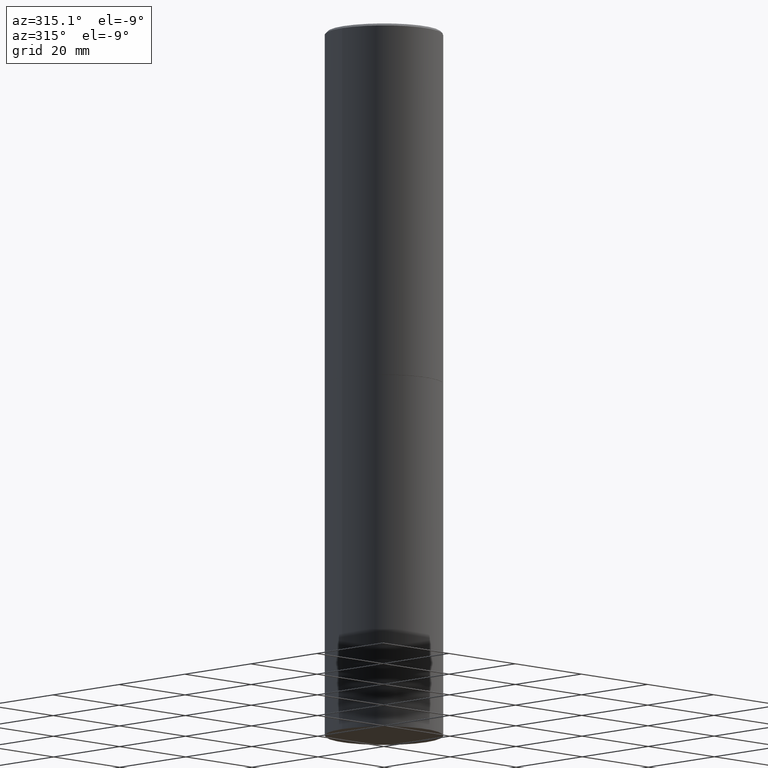
[diagram: clean part render]
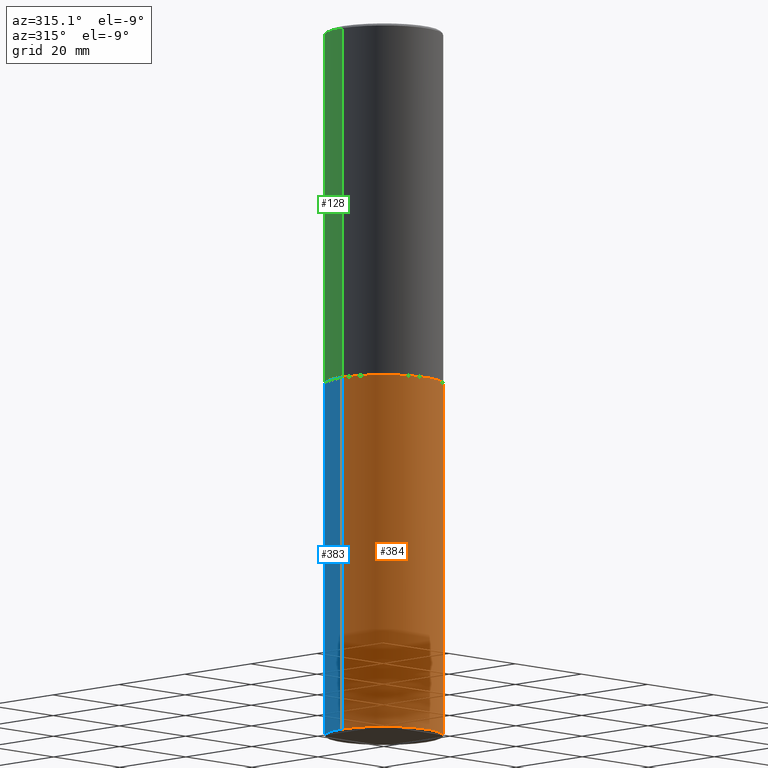
[diagram: same view with three faces highlighted in distinct colors, each labeled with its STEP entity id]
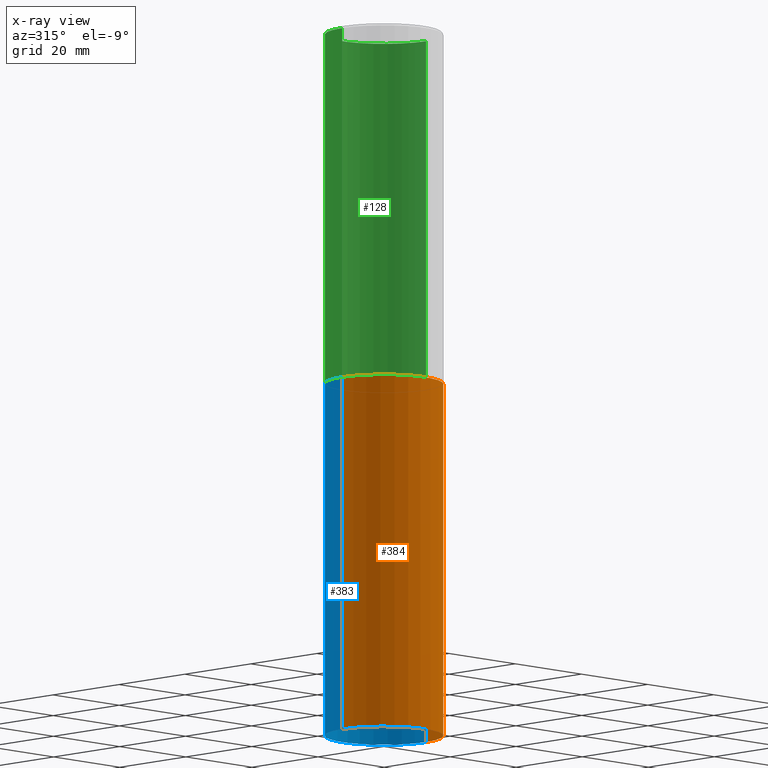
[diagram: x-ray of the same camera — body ghosted, the three highlighted faces saturated]
A machine part, auxiliary view with three faces highlighted in distinct colors.
The next image is the same camera in x-ray (body ghosted, the three faces saturated) — at least one of them is partly hidden behind the body in this view.
Their STEP definitions:

[orange] entity #384 — the highlighted cylindrical surface (partial cylindrical patch) has radius 12.7 mm, axis along (-0, 0, 1).
#7 = VERTEX_POINT ( 'NONE', #216 ) ;
#13 = LINE ( 'NONE', #53, #388 ) ;
#26 = AXIS2_PLACEMENT_3D ( 'NONE', #121, #175, #337 ) ;
#36 = VERTEX_POINT ( 'NONE', #44 ) ;
#44 = CARTESIAN_POINT ( 'NONE',  ( -0.4999999999999991673, -1.745740669421574566E-14, -6.000000000000000888 ) ) ;
#53 = CARTESIAN_POINT ( 'NONE',  ( 0.5000000000000000000, -3.491481338843133355E-15, 2.438088387897967896E-29 ) ) ;
#56 = DIRECTION ( 'NONE',  ( -2.445468806185136877E-29, 3.491481338843145188E-15, 1.000000000000000000 ) ) ;
#64 = EDGE_LOOP ( 'NONE', ( #115, #340, #273, #119 ) ) ;
#72 = VERTEX_POINT ( 'NONE', #158 ) ;
#85 = CARTESIAN_POINT ( 'NONE',  ( -0.5000000000000000000, 3.552713678800500929E-15, -2.459467545127452891E-29 ) ) ;
#97 = EDGE_CURVE ( 'NONE', #72, #7, #13, .T. ) ;
#101 = AXIS2_PLACEMENT_3D ( 'NONE', #259, #174, #318 ) ;
#103 = DIRECTION ( 'NONE',  ( -2.445468806185136877E-29, 3.491481338843145188E-15, 1.000000000000000000 ) ) ;
#115 = ORIENTED_EDGE ( 'NONE', *, *, #312, .F. ) ;
#118 = FACE_OUTER_BOUND ( 'NONE', #64, .T. ) ;
#119 = ORIENTED_EDGE ( 'NONE', *, *, #199, .F. ) ;
#121 = CARTESIAN_POINT ( 'NONE',  ( 0.000000000000000000, 0.000000000000000000, 0.000000000000000000 ) ) ;
#140 = EDGE_CURVE ( 'NONE', #36, #72, #389, .T. ) ;
#141 = CARTESIAN_POINT ( 'NONE',  ( -0.5000000000000000000, -1.215895234599365439E-14, -3.000000000000000444 ) ) ;
#158 = CARTESIAN_POINT ( 'NONE',  ( 0.4999999999999991673, -2.437913703194463533E-14, -6.000000000000000888 ) ) ;
#174 = DIRECTION ( 'NONE',  ( -2.445468806185136597E-29, 3.491481338843145583E-15, 1.000000000000000000 ) ) ;
#175 = DIRECTION ( 'NONE',  ( -2.445468806185136597E-29, 3.491481338843145583E-15, 1.000000000000000000 ) ) ;
#183 = VERTEX_POINT ( 'NONE', #141 ) ;
#185 = AXIS2_PLACEMENT_3D ( 'NONE', #275, #371, #251 ) ;
#199 = EDGE_CURVE ( 'NONE', #183, #7, #262, .T. ) ;
#216 = CARTESIAN_POINT ( 'NONE',  ( 0.5000000000000000000, -1.396592535537257129E-14, -3.000000000000000444 ) ) ;
#251 = DIRECTION ( 'NONE',  ( 1.000000000000000000, -6.982962677686262766E-15, 0.000000000000000000 ) ) ;
#259 = CARTESIAN_POINT ( 'NONE',  ( 7.336406418555409790E-29, -1.047444401652943635E-14, -3.000000000000000444 ) ) ;
#262 = CIRCLE ( 'NONE', #101, 0.5000000000000000000 ) ;
#273 = ORIENTED_EDGE ( 'NONE', *, *, #97, .T. ) ;
#275 = CARTESIAN_POINT ( 'NONE',  ( 1.467281283711081958E-28, -2.094888803305887271E-14, -6.000000000000000888 ) ) ;
#295 = VECTOR ( 'NONE', #56, 39.37007874015748143 ) ;
#312 = EDGE_CURVE ( 'NONE', #36, #183, #320, .T. ) ;
#318 = DIRECTION ( 'NONE',  ( 1.000000000000000000, -6.982962677686266711E-15, 0.000000000000000000 ) ) ;
#320 = LINE ( 'NONE', #85, #295 ) ;
#337 = DIRECTION ( 'NONE',  ( 1.000000000000000000, -6.982962677686266711E-15, 4.876176775795935793E-29 ) ) ;
#340 = ORIENTED_EDGE ( 'NONE', *, *, #140, .T. ) ;
#359 = CYLINDRICAL_SURFACE ( 'NONE', #26, 0.5000000000000000000 ) ;
#371 = DIRECTION ( 'NONE',  ( -2.445468806185136597E-29, 3.491481338843145583E-15, 1.000000000000000000 ) ) ;
#384 = ADVANCED_FACE ( 'NONE', ( #118 ), #359, .T. ) ;
#388 = VECTOR ( 'NONE', #103, 39.37007874015748143 ) ;
#389 = CIRCLE ( 'NONE', #185, 0.5000000000000000000 ) ;

[blue] entity #383 — the highlighted cylindrical surface (partial cylindrical patch) has radius 12.7 mm, axis along (-0, 0, 1).
#3 = DIRECTION ( 'NONE',  ( -2.445468806185136597E-29, 3.491481338843145583E-15, 1.000000000000000000 ) ) ;
#7 = VERTEX_POINT ( 'NONE', #216 ) ;
#10 = CYLINDRICAL_SURFACE ( 'NONE', #184, 0.5000000000000000000 ) ;
#11 = ORIENTED_EDGE ( 'NONE', *, *, #312, .T. ) ;
#13 = LINE ( 'NONE', #53, #388 ) ;
#33 = EDGE_CURVE ( 'NONE', #7, #183, #45, .T. ) ;
#36 = VERTEX_POINT ( 'NONE', #44 ) ;
#44 = CARTESIAN_POINT ( 'NONE',  ( -0.4999999999999991673, -1.745740669421574566E-14, -6.000000000000000888 ) ) ;
#45 = CIRCLE ( 'NONE', #62, 0.5000000000000000000 ) ;
#53 = CARTESIAN_POINT ( 'NONE',  ( 0.5000000000000000000, -3.491481338843133355E-15, 2.438088387897967896E-29 ) ) ;
#56 = DIRECTION ( 'NONE',  ( -2.445468806185136877E-29, 3.491481338843145188E-15, 1.000000000000000000 ) ) ;
#62 = AXIS2_PLACEMENT_3D ( 'NONE', #376, #223, #315 ) ;
#72 = VERTEX_POINT ( 'NONE', #158 ) ;
#85 = CARTESIAN_POINT ( 'NONE',  ( -0.5000000000000000000, 3.552713678800500929E-15, -2.459467545127452891E-29 ) ) ;
#88 = CARTESIAN_POINT ( 'NONE',  ( 0.000000000000000000, 0.000000000000000000, 0.000000000000000000 ) ) ;
#97 = EDGE_CURVE ( 'NONE', #72, #7, #13, .T. ) ;
#100 = AXIS2_PLACEMENT_3D ( 'NONE', #220, #193, #311 ) ;
#103 = DIRECTION ( 'NONE',  ( -2.445468806185136877E-29, 3.491481338843145188E-15, 1.000000000000000000 ) ) ;
#122 = EDGE_CURVE ( 'NONE', #72, #36, #357, .T. ) ;
#141 = CARTESIAN_POINT ( 'NONE',  ( -0.5000000000000000000, -1.215895234599365439E-14, -3.000000000000000444 ) ) ;
#144 = DIRECTION ( 'NONE',  ( 1.000000000000000000, -6.982962677686266711E-15, 4.876176775795935793E-29 ) ) ;
#158 = CARTESIAN_POINT ( 'NONE',  ( 0.4999999999999991673, -2.437913703194463533E-14, -6.000000000000000888 ) ) ;
#183 = VERTEX_POINT ( 'NONE', #141 ) ;
#184 = AXIS2_PLACEMENT_3D ( 'NONE', #88, #3, #144 ) ;
#193 = DIRECTION ( 'NONE',  ( -2.445468806185136597E-29, 3.491481338843145583E-15, 1.000000000000000000 ) ) ;
#215 = ORIENTED_EDGE ( 'NONE', *, *, #97, .F. ) ;
#216 = CARTESIAN_POINT ( 'NONE',  ( 0.5000000000000000000, -1.396592535537257129E-14, -3.000000000000000444 ) ) ;
#220 = CARTESIAN_POINT ( 'NONE',  ( 1.467281283711081958E-28, -2.094888803305887271E-14, -6.000000000000000888 ) ) ;
#223 = DIRECTION ( 'NONE',  ( -2.445468806185136597E-29, 3.491481338843145583E-15, 1.000000000000000000 ) ) ;
#240 = ORIENTED_EDGE ( 'NONE', *, *, #33, .F. ) ;
#272 = ORIENTED_EDGE ( 'NONE', *, *, #122, .T. ) ;
#295 = VECTOR ( 'NONE', #56, 39.37007874015748143 ) ;
#311 = DIRECTION ( 'NONE',  ( 1.000000000000000000, -6.982962677686262766E-15, 0.000000000000000000 ) ) ;
#312 = EDGE_CURVE ( 'NONE', #36, #183, #320, .T. ) ;
#315 = DIRECTION ( 'NONE',  ( 1.000000000000000000, -6.982962677686266711E-15, 0.000000000000000000 ) ) ;
#320 = LINE ( 'NONE', #85, #295 ) ;
#321 = EDGE_LOOP ( 'NONE', ( #272, #11, #240, #215 ) ) ;
#357 = CIRCLE ( 'NONE', #100, 0.5000000000000000000 ) ;
#367 = FACE_OUTER_BOUND ( 'NONE', #321, .T. ) ;
#376 = CARTESIAN_POINT ( 'NONE',  ( 7.336406418555409790E-29, -1.047444401652943635E-14, -3.000000000000000444 ) ) ;
#383 = ADVANCED_FACE ( 'NONE', ( #367 ), #10, .T. ) ;
#388 = VECTOR ( 'NONE', #103, 39.37007874015748143 ) ;

[green] entity #128 — the highlighted cylindrical surface (partial cylindrical patch) has radius 12.7 mm, axis along (-0, 0, 1).
#5 = CIRCLE ( 'NONE', #63, 0.4999999999999996669 ) ;
#16 = CARTESIAN_POINT ( 'NONE',  ( 4.890937612370299433E-31, -6.982962677686328587E-17, -0.02000000000000010797 ) ) ;
#21 = FACE_OUTER_BOUND ( 'NONE', #177, .T. ) ;
#22 = EDGE_CURVE ( 'NONE', #360, #145, #254, .T. ) ;
#38 = ORIENTED_EDGE ( 'NONE', *, *, #133, .F. ) ;
#49 = CYLINDRICAL_SURFACE ( 'NONE', #310, 0.4999999999999998335 ) ;
#51 = CARTESIAN_POINT ( 'NONE',  ( 0.4999999999999998335, -3.491481338843132566E-15, 2.438088387897967336E-29 ) ) ;
#63 = AXIS2_PLACEMENT_3D ( 'NONE', #16, #374, #78 ) ;
#66 = EDGE_CURVE ( 'NONE', #146, #360, #274, .T. ) ;
#78 = DIRECTION ( 'NONE',  ( 1.000000000000000000, -6.982962677686266711E-15, 0.000000000000000000 ) ) ;
#93 = ORIENTED_EDGE ( 'NONE', *, *, #22, .T. ) ;
#102 = CARTESIAN_POINT ( 'NONE',  ( -0.4999999999999996669, 3.421651712066267691E-15, -0.02000000000000010797 ) ) ;
#124 = CARTESIAN_POINT ( 'NONE',  ( 0.5000000000000000000, -1.396243387403372828E-14, -2.999000000000000554 ) ) ;
#127 = ORIENTED_EDGE ( 'NONE', *, *, #159, .F. ) ;
#128 = ADVANCED_FACE ( 'NONE', ( #21 ), #49, .T. ) ;
#133 = EDGE_CURVE ( 'NONE', #369, #145, #5, .T. ) ;
#145 = VERTEX_POINT ( 'NONE', #102 ) ;
#146 = VERTEX_POINT ( 'NONE', #124 ) ;
#148 = ORIENTED_EDGE ( 'NONE', *, *, #66, .T. ) ;
#155 = CARTESIAN_POINT ( 'NONE',  ( 7.333960949749226429E-29, -1.047095253519059492E-14, -2.999000000000000554 ) ) ;
#159 = EDGE_CURVE ( 'NONE', #146, #369, #314, .T. ) ;
#160 = DIRECTION ( 'NONE',  ( 1.000000000000000000, -6.982962677686267499E-15, 4.876176775795936353E-29 ) ) ;
#161 = DIRECTION ( 'NONE',  ( -2.445468806185136877E-29, 3.491481338843145188E-15, 1.000000000000000000 ) ) ;
#177 = EDGE_LOOP ( 'NONE', ( #148, #93, #38, #127 ) ) ;
#191 = CARTESIAN_POINT ( 'NONE',  ( -0.4999999999999998335, 3.552713678800499746E-15, -2.459467545127452330E-29 ) ) ;
#202 = CARTESIAN_POINT ( 'NONE',  ( 0.4999999999999996669, -3.500078625662626713E-15, -0.02000000000000010797 ) ) ;
#214 = VECTOR ( 'NONE', #161, 39.37007874015748143 ) ;
#218 = DIRECTION ( 'NONE',  ( 1.000000000000000000, -6.982962677686266711E-15, 0.000000000000000000 ) ) ;
#230 = CARTESIAN_POINT ( 'NONE',  ( -0.5000000000000000000, -1.717677402183226998E-15, -2.999000000000000554 ) ) ;
#254 = LINE ( 'NONE', #191, #329 ) ;
#274 = CIRCLE ( 'NONE', #282, 0.5000000000000000000 ) ;
#278 = DIRECTION ( 'NONE',  ( -2.445468806185136597E-29, 3.491481338843145583E-15, 1.000000000000000000 ) ) ;
#279 = DIRECTION ( 'NONE',  ( -2.445468806185136877E-29, 3.491481338843145188E-15, 1.000000000000000000 ) ) ;
#282 = AXIS2_PLACEMENT_3D ( 'NONE', #155, #278, #218 ) ;
#310 = AXIS2_PLACEMENT_3D ( 'NONE', #341, #377, #160 ) ;
#314 = LINE ( 'NONE', #51, #214 ) ;
#329 = VECTOR ( 'NONE', #279, 39.37007874015748143 ) ;
#341 = CARTESIAN_POINT ( 'NONE',  ( 0.000000000000000000, 0.000000000000000000, 0.000000000000000000 ) ) ;
#360 = VERTEX_POINT ( 'NONE', #230 ) ;
#369 = VERTEX_POINT ( 'NONE', #202 ) ;
#374 = DIRECTION ( 'NONE',  ( -2.445468806185136597E-29, 3.491481338843145583E-15, 1.000000000000000000 ) ) ;
#377 = DIRECTION ( 'NONE',  ( -2.445468806185136597E-29, 3.491481338843145583E-15, 1.000000000000000000 ) ) ;